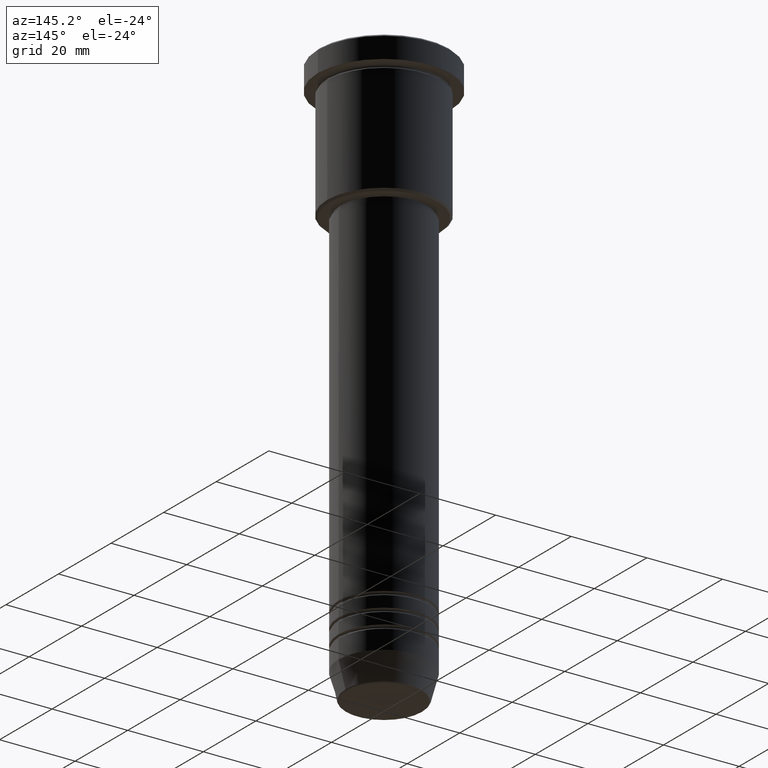
[diagram: clean part render]
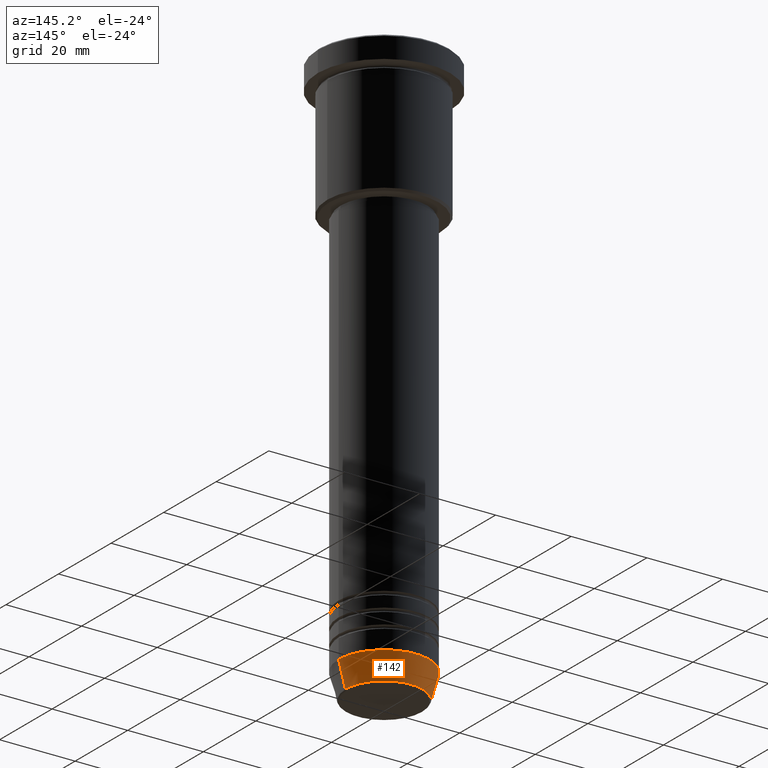
[diagram: same view with one face highlighted and labeled with its STEP entity id]
A machine part, auxiliary view. The second image highlights one B-rep face of the part: STEP entity #142.
In plain terms, the highlighted conical surface has half-angle 15 deg.
Its self-contained STEP definition (entity closure, byte-faithful):
#20 = VERTEX_POINT ( 'NONE', #109 ) ;
#22 = CONICAL_SURFACE ( 'NONE', #183, 12.00000000000000000, 0.2617993877991500740 ) ;
#25 = EDGE_CURVE ( 'NONE', #316, #20, #1154, .T. ) ;
#44 = AXIS2_PLACEMENT_3D ( 'NONE', #936, #392, #201 ) ;
#109 = CARTESIAN_POINT ( 'NONE',  ( -12.00000000000000000, 1.469576158976823947E-15, -144.0000000000000284 ) ) ;
#142 = ADVANCED_FACE ( 'NONE', ( #209 ), #22, .T. ) ;
#183 = AXIS2_PLACEMENT_3D ( 'NONE', #914, #1094, #282 ) ;
#201 = DIRECTION ( 'NONE',  ( 1.000000000000000000, 0.000000000000000000, 0.000000000000000000 ) ) ;
#209 = FACE_OUTER_BOUND ( 'NONE', #597, .T. ) ;
#220 = EDGE_CURVE ( 'NONE', #1065, #789, #1018, .T. ) ;
#261 = AXIS2_PLACEMENT_3D ( 'NONE', #1111, #298, #545 ) ;
#274 = ORIENTED_EDGE ( 'NONE', *, *, #25, .F. ) ;
#282 = DIRECTION ( 'NONE',  ( 1.000000000000000000, 0.000000000000000000, 0.000000000000000000 ) ) ;
#298 = DIRECTION ( 'NONE',  ( -0.000000000000000000, -0.000000000000000000, 1.000000000000000000 ) ) ;
#316 = VERTEX_POINT ( 'NONE', #948 ) ;
#385 = LINE ( 'NONE', #453, #543 ) ;
#392 = DIRECTION ( 'NONE',  ( -0.000000000000000000, -0.000000000000000000, 1.000000000000000000 ) ) ;
#446 = ORIENTED_EDGE ( 'NONE', *, *, #528, .T. ) ;
#448 = CARTESIAN_POINT ( 'NONE',  ( -12.00000000000000000, 1.469576158976823947E-15, -144.0000000000000284 ) ) ;
#453 = CARTESIAN_POINT ( 'NONE',  ( 12.00000000000000000, 0.000000000000000000, -144.0000000000000284 ) ) ;
#505 = ORIENTED_EDGE ( 'NONE', *, *, #220, .T. ) ;
#528 = EDGE_CURVE ( 'NONE', #789, #20, #638, .T. ) ;
#542 = CARTESIAN_POINT ( 'NONE',  ( 10.22365507213719127, 0.000000000000000000, -150.6294095225512706 ) ) ;
#543 = VECTOR ( 'NONE', #816, 1000.000000000000000 ) ;
#545 = DIRECTION ( 'NONE',  ( 1.000000000000000000, 0.000000000000000000, 0.000000000000000000 ) ) ;
#597 = EDGE_LOOP ( 'NONE', ( #505, #446, #274, #1124 ) ) ;
#638 = LINE ( 'NONE', #448, #701 ) ;
#701 = VECTOR ( 'NONE', #1062, 1000.000000000000000 ) ;
#789 = VERTEX_POINT ( 'NONE', #845 ) ;
#816 = DIRECTION ( 'NONE',  ( 0.2588190451025213501, 0.000000000000000000, 0.9659258262890680902 ) ) ;
#845 = CARTESIAN_POINT ( 'NONE',  ( -10.22365507213719127, 1.360806402472382744E-15, -150.6294095225512706 ) ) ;
#914 = CARTESIAN_POINT ( 'NONE',  ( 0.000000000000000000, 0.000000000000000000, -144.0000000000000284 ) ) ;
#936 = CARTESIAN_POINT ( 'NONE',  ( 0.000000000000000000, 0.000000000000000000, -150.6294095225512706 ) ) ;
#948 = CARTESIAN_POINT ( 'NONE',  ( 12.00000000000000000, 0.000000000000000000, -144.0000000000000284 ) ) ;
#1018 = CIRCLE ( 'NONE', #44, 10.22365507213719127 ) ;
#1062 = DIRECTION ( 'NONE',  ( -0.2588190451025213501, 3.169619151431772337E-17, 0.9659258262890680902 ) ) ;
#1065 = VERTEX_POINT ( 'NONE', #542 ) ;
#1094 = DIRECTION ( 'NONE',  ( -0.000000000000000000, -0.000000000000000000, 1.000000000000000000 ) ) ;
#1111 = CARTESIAN_POINT ( 'NONE',  ( 0.000000000000000000, 0.000000000000000000, -144.0000000000000284 ) ) ;
#1124 = ORIENTED_EDGE ( 'NONE', *, *, #1156, .F. ) ;
#1154 = CIRCLE ( 'NONE', #261, 12.00000000000000000 ) ;
#1156 = EDGE_CURVE ( 'NONE', #1065, #316, #385, .T. ) ;